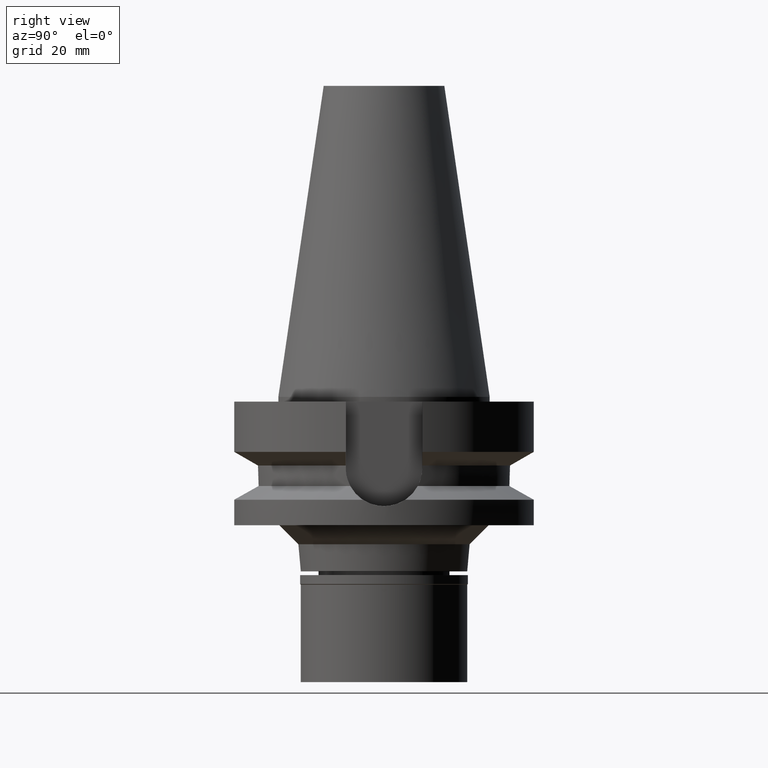
[diagram: clean part render]
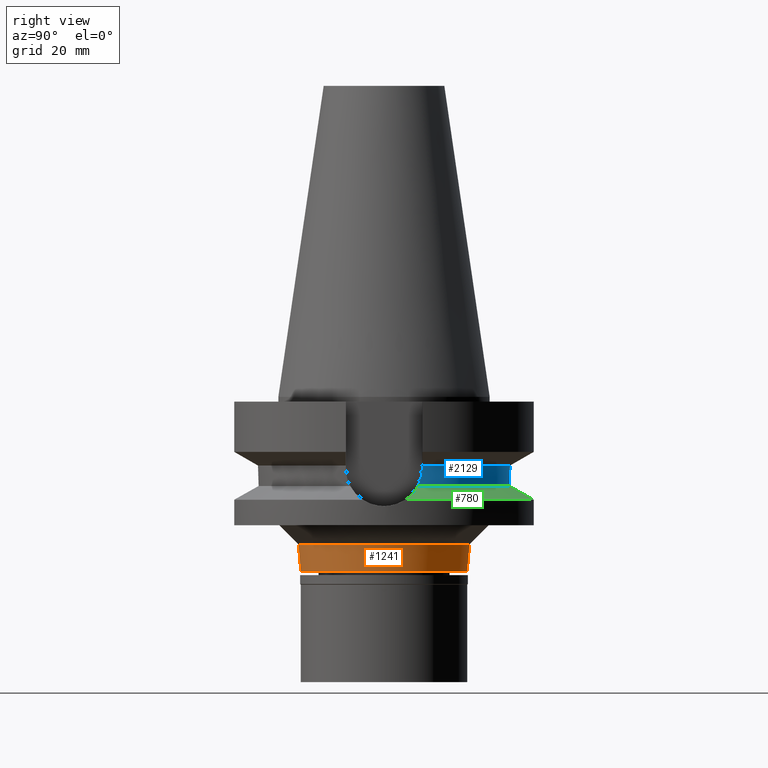
[diagram: same view with three faces highlighted in distinct colors, each labeled with its STEP entity id]
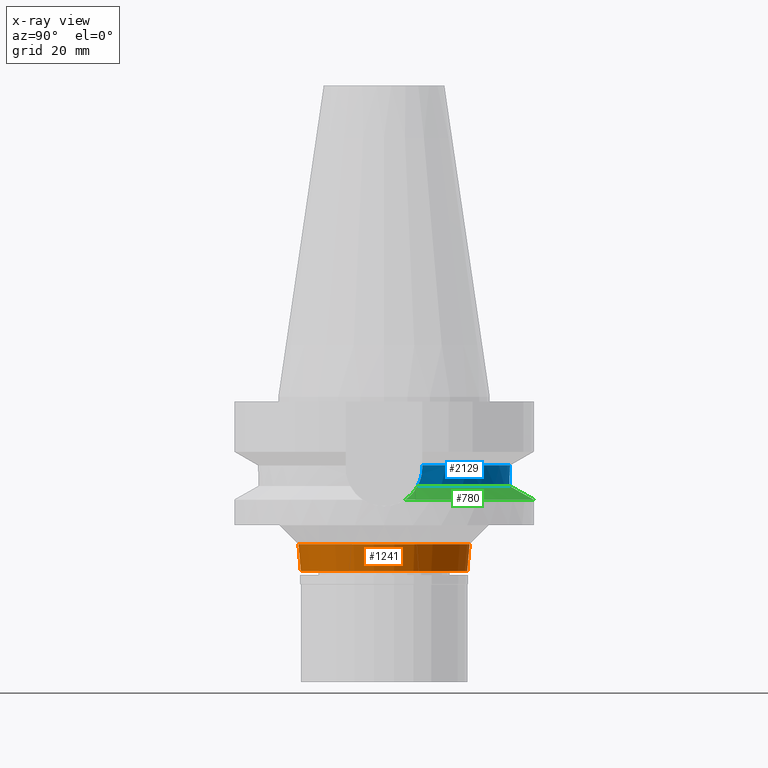
[diagram: x-ray of the same camera — body ghosted, the three highlighted faces saturated]
A machine part, right view with three faces highlighted in distinct colors.
The next image is the same camera in x-ray (body ghosted, the three faces saturated) — at least one of them is partly hidden behind the body in this view.
Their STEP definitions:

[orange] entity #1241 — the highlighted conical surface has half-angle 5.1 deg.
#208 = CARTESIAN_POINT ( 'NONE',  ( 0.0000000000000000000, 0.0000000000000000000, -33.85000000000000142 ) ) ;
#361 = CIRCLE ( 'NONE', #1116, 17.50000000000000000 ) ;
#375 = LINE ( 'NONE', #2158, #2154 ) ;
#459 = DIRECTION ( 'NONE',  ( 0.0000000000000000000, -0.08889429686614956638, -0.9960410654107956230 ) ) ;
#477 = VERTEX_POINT ( 'NONE', #1628 ) ;
#500 = CIRCLE ( 'NONE', #653, 18.00871144747999608 ) ;
#638 = EDGE_CURVE ( 'NONE', #2095, #2376, #361, .T. ) ;
#653 = AXIS2_PLACEMENT_3D ( 'NONE', #686, #2322, #1135 ) ;
#682 = CARTESIAN_POINT ( 'NONE',  ( 0.0000000000000000000, 17.50000000000000000, -36.70000000000000284 ) ) ;
#686 = CARTESIAN_POINT ( 'NONE',  ( 0.0000000000000000000, 0.0000000000000000000, -31.00000000000000000 ) ) ;
#701 = EDGE_CURVE ( 'NONE', #477, #2376, #1884, .T. ) ;
#762 = ORIENTED_EDGE ( 'NONE', *, *, #638, .T. ) ;
#784 = ORIENTED_EDGE ( 'NONE', *, *, #1198, .T. ) ;
#792 = DIRECTION ( 'NONE',  ( 0.0000000000000000000, -1.000000000000000000, 0.0000000000000000000 ) ) ;
#1116 = AXIS2_PLACEMENT_3D ( 'NONE', #2430, #2856, #792 ) ;
#1135 = DIRECTION ( 'NONE',  ( 0.0000000000000000000, -1.000000000000000000, 0.0000000000000000000 ) ) ;
#1198 = EDGE_CURVE ( 'NONE', #2704, #2095, #375, .T. ) ;
#1202 = EDGE_CURVE ( 'NONE', #2704, #477, #500, .T. ) ;
#1241 = ADVANCED_FACE ( 'NONE', ( #1400 ), #2824, .T. ) ;
#1400 = FACE_OUTER_BOUND ( 'NONE', #1982, .T. ) ;
#1446 = CARTESIAN_POINT ( 'NONE',  ( 0.0000000000000000000, 18.00871144747999608, -31.00000000000000000 ) ) ;
#1469 = DIRECTION ( 'NONE',  ( 0.0000000000000000000, 0.0000000000000000000, 1.000000000000000000 ) ) ;
#1628 = CARTESIAN_POINT ( 'NONE',  ( 0.0000000000000000000, 18.00871144747999608, -31.00000000000000000 ) ) ;
#1686 = DIRECTION ( 'NONE',  ( 0.0000000000000000000, 0.08889429686614956638, -0.9960410654107956230 ) ) ;
#1695 = AXIS2_PLACEMENT_3D ( 'NONE', #208, #1469, #2179 ) ;
#1884 = LINE ( 'NONE', #1446, #2007 ) ;
#1982 = EDGE_LOOP ( 'NONE', ( #2739, #784, #762, #3005 ) ) ;
#1985 = CARTESIAN_POINT ( 'NONE',  ( 0.0000000000000000000, -17.50000000000000000, -36.70000000000000284 ) ) ;
#2007 = VECTOR ( 'NONE', #459, 1000.000000000000114 ) ;
#2095 = VERTEX_POINT ( 'NONE', #1985 ) ;
#2154 = VECTOR ( 'NONE', #1686, 1000.000000000000114 ) ;
#2158 = CARTESIAN_POINT ( 'NONE',  ( 0.0000000000000000000, -18.00871144747999608, -31.00000000000000000 ) ) ;
#2179 = DIRECTION ( 'NONE',  ( 0.0000000000000000000, 1.000000000000000000, 0.0000000000000000000 ) ) ;
#2322 = DIRECTION ( 'NONE',  ( 0.0000000000000000000, 0.0000000000000000000, 1.000000000000000000 ) ) ;
#2376 = VERTEX_POINT ( 'NONE', #682 ) ;
#2430 = CARTESIAN_POINT ( 'NONE',  ( 0.0000000000000000000, 0.0000000000000000000, -36.70000000000000284 ) ) ;
#2700 = CARTESIAN_POINT ( 'NONE',  ( 0.0000000000000000000, -18.00871144747999608, -31.00000000000000000 ) ) ;
#2704 = VERTEX_POINT ( 'NONE', #2700 ) ;
#2739 = ORIENTED_EDGE ( 'NONE', *, *, #1202, .F. ) ;
#2824 = CONICAL_SURFACE ( 'NONE', #1695, 17.75435572374000159, 0.08901179185169383334 ) ;
#2856 = DIRECTION ( 'NONE',  ( 0.0000000000000000000, 0.0000000000000000000, 1.000000000000000000 ) ) ;
#3005 = ORIENTED_EDGE ( 'NONE', *, *, #701, .F. ) ;

[blue] entity #2129 — the highlighted cylindrical surface (partial cylindrical patch) has radius 26.5 mm, axis along (0, 0, -1).
#55 = LINE ( 'NONE', #1647, #302 ) ;
#116 = EDGE_CURVE ( 'NONE', #2320, #2419, #1307, .T. ) ;
#159 = AXIS2_PLACEMENT_3D ( 'NONE', #1272, #1587, #1538 ) ;
#250 = AXIS2_PLACEMENT_3D ( 'NONE', #1617, #2564, #2864 ) ;
#289 = CARTESIAN_POINT ( 'NONE',  ( -25.31202244740001461, 7.845715351188225384, -16.75285925644253382 ) ) ;
#296 = EDGE_CURVE ( 'NONE', #1281, #2406, #2774, .T. ) ;
#302 = VECTOR ( 'NONE', #527, 1000.000000000000114 ) ;
#445 = CARTESIAN_POINT ( 'NONE',  ( 25.37570668987012112, 7.637796999689727251, -17.49792859799481448 ) ) ;
#448 = VERTEX_POINT ( 'NONE', #1871 ) ;
#462 = CARTESIAN_POINT ( 'NONE',  ( 25.53175183775000079, 7.097862220092999941, -18.74774300138999905 ) ) ;
#470 = EDGE_CURVE ( 'NONE', #1281, #2260, #2762, .T. ) ;
#488 = CARTESIAN_POINT ( 'NONE',  ( 25.24772414797999787, 8.049995363206999599, -14.45229242979000084 ) ) ;
#527 = DIRECTION ( 'NONE',  ( 2.970413124855976911E-06, -9.316300007267926456E-06, 0.9999999999521915761 ) ) ;
#651 = CARTESIAN_POINT ( 'NONE',  ( 25.33290093529253895, 7.778067760096087468, -17.02527487563960307 ) ) ;
#658 = VECTOR ( 'NONE', #1616, 1000.000000000000114 ) ;
#669 = B_SPLINE_CURVE_WITH_KNOTS ( 'NONE', 3,
 ( #2378, #1036, #2241, #2940, #841, #1781, #1031, #289, #2952, #2486, #2658, #2268, #1255, #1024 ),
 .UNSPECIFIED., .F., .F.,
 ( 4, 2, 2, 1, 1, 2, 2, 4 ),
 ( 0.0000000000000000000, 0.2500000000000162648, 0.3750000000000237033, 0.4375000000000274225, 0.4687500000000292544, 0.4843750000000290878, 0.5000000000000288658, 1.000000000000000000 ),
 .UNSPECIFIED. ) ;
#841 = CARTESIAN_POINT ( 'NONE',  ( -25.28048191953834234, 7.947027004681899598, -16.24409354915845327 ) ) ;
#844 = FACE_OUTER_BOUND ( 'NONE', #1235, .T. ) ;
#891 = CARTESIAN_POINT ( 'NONE',  ( -25.24772217529000073, 8.050001550280999396, -14.45224515308999891 ) ) ;
#919 = CARTESIAN_POINT ( 'NONE',  ( -25.53175183775000079, 7.097862220092999941, -18.74774300138999905 ) ) ;
#1024 = CARTESIAN_POINT ( 'NONE',  ( -25.53175183775000079, 7.097862220092999941, -18.74774300138999905 ) ) ;
#1031 = CARTESIAN_POINT ( 'NONE',  ( -25.30212642397509626, 7.877652634765773598, -16.61049091562633961 ) ) ;
#1036 = CARTESIAN_POINT ( 'NONE',  ( -25.24772266958000699, 8.050000000000018474, -15.26995863568740397 ) ) ;
#1148 = CARTESIAN_POINT ( 'NONE',  ( 25.32841847211643937, 7.792621106460854818, -16.96938725878849041 ) ) ;
#1205 = ORIENTED_EDGE ( 'NONE', *, *, #116, .T. ) ;
#1235 = EDGE_LOOP ( 'NONE', ( #1205, #2746, #1419, #2278, #2190, #1773 ) ) ;
#1255 = CARTESIAN_POINT ( 'NONE',  ( -25.43785506100059379, 7.435618734365219140, -18.11648669958635693 ) ) ;
#1272 = CARTESIAN_POINT ( 'NONE',  ( 0.0000000000000000000, 2.098248593318999714E-14, 71.33499999999999375 ) ) ;
#1281 = VERTEX_POINT ( 'NONE', #462 ) ;
#1290 = EDGE_CURVE ( 'NONE', #448, #2406, #669, .T. ) ;
#1307 = CIRCLE ( 'NONE', #250, 26.50000000000000711 ) ;
#1313 = CYLINDRICAL_SURFACE ( 'NONE', #159, 26.50000000000000000 ) ;
#1360 = CARTESIAN_POINT ( 'NONE',  ( 25.32416715502053250, 7.806414197728631876, -16.91540975489061438 ) ) ;
#1389 = CARTESIAN_POINT ( 'NONE',  ( 25.39162493938946952, 7.584889300339769491, -17.65175237885825510 ) ) ;
#1419 = ORIENTED_EDGE ( 'NONE', *, *, #470, .F. ) ;
#1538 = DIRECTION ( 'NONE',  ( 0.0000000000000000000, -1.000000000000000000, 0.0000000000000000000 ) ) ;
#1587 = DIRECTION ( 'NONE',  ( 0.0000000000000000000, 0.0000000000000000000, -1.000000000000000000 ) ) ;
#1616 = DIRECTION ( 'NONE',  ( -9.930438083725565891E-07, -3.114547832065863876E-06, -0.9999999999946567186 ) ) ;
#1617 = CARTESIAN_POINT ( 'NONE',  ( 0.0000000000000000000, 1.065333950388000029E-14, -14.45225699861000024 ) ) ;
#1647 = CARTESIAN_POINT ( 'NONE',  ( 25.24772266958000344, 8.050000000000000711, -14.94999999999999929 ) ) ;
#1773 = ORIENTED_EDGE ( 'NONE', *, *, #1827, .F. ) ;
#1774 = DIRECTION ( 'NONE',  ( 0.9634623335000935818, 0.2678438573619981722, 0.0000000000000000000 ) ) ;
#1781 = CARTESIAN_POINT ( 'NONE',  ( -25.29452159809190093, 7.902075829211898217, -16.48836005901232937 ) ) ;
#1827 = EDGE_CURVE ( 'NONE', #2320, #448, #1853, .T. ) ;
#1853 = LINE ( 'NONE', #891, #658 ) ;
#1871 = CARTESIAN_POINT ( 'NONE',  ( -25.24772266958000344, 8.050000000000000711, -14.94999999999999929 ) ) ;
#1889 = CARTESIAN_POINT ( 'NONE',  ( 25.48481052201388408, 7.266715036218282187, -18.43216239893522257 ) ) ;
#2032 = CARTESIAN_POINT ( 'NONE',  ( 0.0000000000000000000, 0.0000000000000000000, -18.74774300138999905 ) ) ;
#2070 = EDGE_CURVE ( 'NONE', #2260, #2419, #55, .T. ) ;
#2074 = CARTESIAN_POINT ( 'NONE',  ( 25.53175183775000079, 7.097862220092999941, -18.74774300138999905 ) ) ;
#2102 = CARTESIAN_POINT ( 'NONE',  ( 25.34385564283465797, 7.742426194080676893, -17.15634504640316749 ) ) ;
#2129 = ADVANCED_FACE ( 'NONE', ( #844 ), #1313, .T. ) ;
#2190 = ORIENTED_EDGE ( 'NONE', *, *, #1290, .F. ) ;
#2241 = CARTESIAN_POINT ( 'NONE',  ( -25.25396252671492547, 8.030902051885153270, -15.59367622151629718 ) ) ;
#2260 = VERTEX_POINT ( 'NONE', #2460 ) ;
#2268 = CARTESIAN_POINT ( 'NONE',  ( -25.36813810015027926, 7.663837995223238941, -17.48799049447513454 ) ) ;
#2278 = ORIENTED_EDGE ( 'NONE', *, *, #296, .T. ) ;
#2320 = VERTEX_POINT ( 'NONE', #2823 ) ;
#2334 = CARTESIAN_POINT ( 'NONE',  ( 25.24772266958000344, 8.050000000000000711, -15.58988314849633561 ) ) ;
#2378 = CARTESIAN_POINT ( 'NONE',  ( -25.24772266958000344, 8.050000000000000711, -14.94999999999999929 ) ) ;
#2406 = VERTEX_POINT ( 'NONE', #919 ) ;
#2419 = VERTEX_POINT ( 'NONE', #488 ) ;
#2460 = CARTESIAN_POINT ( 'NONE',  ( 25.24772266958000344, 8.050000000000000711, -14.94999999999999929 ) ) ;
#2486 = CARTESIAN_POINT ( 'NONE',  ( -25.31950540107353120, 7.821502334283406022, -16.85447843441894022 ) ) ;
#2529 = CARTESIAN_POINT ( 'NONE',  ( 25.32547736588454868, 7.802164859283096554, -16.93219376408675814 ) ) ;
#2536 = AXIS2_PLACEMENT_3D ( 'NONE', #2032, #2710, #1774 ) ;
#2564 = DIRECTION ( 'NONE',  ( 0.0000000000000000000, 0.0000000000000000000, -1.000000000000000000 ) ) ;
#2590 = CARTESIAN_POINT ( 'NONE',  ( 25.27268413421364812, 7.973316252974504970, -16.24513481739792908 ) ) ;
#2658 = CARTESIAN_POINT ( 'NONE',  ( -25.32117791941933405, 7.816083715568992396, -16.87657725263354180 ) ) ;
#2710 = DIRECTION ( 'NONE',  ( 0.0000000000000000000, 0.0000000000000000000, 1.000000000000000000 ) ) ;
#2746 = ORIENTED_EDGE ( 'NONE', *, *, #2070, .F. ) ;
#2762 = B_SPLINE_CURVE_WITH_KNOTS ( 'NONE', 3,
 ( #2074, #1889, #2801, #1389, #445, #3041, #2102, #651, #1148, #2529, #1360, #2590, #2334, #2764 ),
 .UNSPECIFIED., .F., .F.,
 ( 4, 2, 2, 1, 1, 2, 2, 4 ),
 ( 0.0000000000000000000, 0.2500000000000008882, 0.3750000000000025535, 0.4375000000000021094, 0.4687500000000018874, 0.4843750000000029421, 0.5000000000000039968, 1.000000000000000000 ),
 .UNSPECIFIED. ) ;
#2764 = CARTESIAN_POINT ( 'NONE',  ( 25.24772266958000344, 8.050000000000000711, -14.94999999999999929 ) ) ;
#2774 = CIRCLE ( 'NONE', #2536, 26.49999999999998224 ) ;
#2801 = CARTESIAN_POINT ( 'NONE',  ( 25.44391113295673534, 7.408299074736797607, -18.11696246892093853 ) ) ;
#2823 = CARTESIAN_POINT ( 'NONE',  ( -25.24772217529000073, 8.050001550280999396, -14.45224515308999891 ) ) ;
#2864 = DIRECTION ( 'NONE',  ( -0.9527442516822307583, 0.3037735849057093818, 0.0000000000000000000 ) ) ;
#2940 = CARTESIAN_POINT ( 'NONE',  ( -25.27268209811968092, 7.971799596722143555, -16.08124396174321902 ) ) ;
#2952 = CARTESIAN_POINT ( 'NONE',  ( -25.31648297027380679, 7.831286608423163820, -16.81383661545202557 ) ) ;
#3041 = CARTESIAN_POINT ( 'NONE',  ( 25.35409503809571774, 7.708922223049618161, -17.26977670179890723 ) ) ;

[green] entity #780 — the highlighted conical surface has half-angle 60 deg.
#34 = DIRECTION ( 'NONE',  ( 0.0000000000000000000, 0.0000000000000000000, -1.000000000000000000 ) ) ;
#53 = B_SPLINE_CURVE_WITH_KNOTS ( 'NONE', 3,
 ( #2030, #1556, #532, #775, #107, #2868, #588, #977, #1934, #1539, #2483, #519, #2264, #2853 ),
 .UNSPECIFIED., .F., .F.,
 ( 4, 2, 2, 1, 1, 2, 2, 4 ),
 ( 0.0000000000000000000, 0.2499999999999855671, 0.3749999999999786837, 0.4374999999999752420, 0.4687499999999740208, 0.4843749999999744649, 0.4999999999999749090, 1.000000000000000000 ),
 .UNSPECIFIED. ) ;
#90 = DIRECTION ( 'NONE',  ( 0.0000000000000000000, 1.000000000000000000, 0.0000000000000000000 ) ) ;
#107 = CARTESIAN_POINT ( 'NONE',  ( -27.86935078466503768, 6.314241967961879531, -19.94614511715922589 ) ) ;
#134 = CARTESIAN_POINT ( 'NONE',  ( 28.88662173957530399, 5.863387539855740016, -20.46575949448729759 ) ) ;
#209 = ORIENTED_EDGE ( 'NONE', *, *, #609, .F. ) ;
#254 = ORIENTED_EDGE ( 'NONE', *, *, #681, .F. ) ;
#296 = EDGE_CURVE ( 'NONE', #1281, #2406, #2774, .T. ) ;
#368 = ORIENTED_EDGE ( 'NONE', *, *, #1157, .F. ) ;
#392 = CARTESIAN_POINT ( 'NONE',  ( 27.92404568082185179, 6.323456278402608710, -19.97420482294344168 ) ) ;
#462 = CARTESIAN_POINT ( 'NONE',  ( 25.53175183775000079, 7.097862220092999941, -18.74774300138999905 ) ) ;
#475 = EDGE_CURVE ( 'NONE', #2666, #1596, #1311, .T. ) ;
#489 = CARTESIAN_POINT ( 'NONE',  ( 0.0000000000000000000, 0.0000000000000000000, -20.19111867435999841 ) ) ;
#519 = CARTESIAN_POINT ( 'NONE',  ( -29.76034277661639393, 5.445783774803773625, -20.91193642771688488 ) ) ;
#532 = CARTESIAN_POINT ( 'NONE',  ( -26.77170282121521083, 6.727659071351483000, -19.38438364392088786 ) ) ;
#552 = EDGE_LOOP ( 'NONE', ( #368, #1293, #254, #209, #968 ) ) ;
#588 = CARTESIAN_POINT ( 'NONE',  ( -28.43957147381200556, 6.071011224801489803, -20.23747356311369217 ) ) ;
#609 = EDGE_CURVE ( 'NONE', #1596, #1317, #2827, .T. ) ;
#627 = CARTESIAN_POINT ( 'NONE',  ( 29.24539825080089983, 5.686404886082226717, -20.64895039922000208 ) ) ;
#681 = EDGE_CURVE ( 'NONE', #1317, #1281, #749, .T. ) ;
#703 = DIRECTION ( 'NONE',  ( 0.0000000000000000000, 0.0000000000000000000, -1.000000000000000000 ) ) ;
#749 = B_SPLINE_CURVE_WITH_KNOTS ( 'NONE', 3,
 ( #1779, #1073, #2292, #871, #1814, #2744, #627, #2521, #1325, #2272, #134, #392, #1826, #2063 ),
 .UNSPECIFIED., .F., .F.,
 ( 4, 2, 2, 1, 1, 2, 2, 4 ),
 ( 0.0000000000000000000, 0.2499999999999998335, 0.3749999999999998335, 0.4374999999999998890, 0.4687499999999999445, 0.4843750000000002220, 0.5000000000000005551, 1.000000000000000000 ),
 .UNSPECIFIED. ) ;
#775 = CARTESIAN_POINT ( 'NONE',  ( -27.60314858341885369, 6.419759492150147295, -19.81002590357304527 ) ) ;
#780 = ADVANCED_FACE ( 'NONE', ( #1676 ), #963, .T. ) ;
#871 = CARTESIAN_POINT ( 'NONE',  ( 29.92152120124286085, 5.319443134748142121, -20.99394787880276425 ) ) ;
#913 = AXIS2_PLACEMENT_3D ( 'NONE', #2842, #34, #90 ) ;
#919 = CARTESIAN_POINT ( 'NONE',  ( -25.53175183775000079, 7.097862220092999941, -18.74774300138999905 ) ) ;
#963 = CONICAL_SURFACE ( 'NONE', #1065, 29.00000000000000000, 1.047197551196400456 ) ;
#968 = ORIENTED_EDGE ( 'NONE', *, *, #475, .F. ) ;
#977 = CARTESIAN_POINT ( 'NONE',  ( -28.65094770215968722, 5.974527729957225475, -20.34541304254299732 ) ) ;
#1065 = AXIS2_PLACEMENT_3D ( 'NONE', #489, #1201, #2141 ) ;
#1073 = CARTESIAN_POINT ( 'NONE',  ( 30.85657950574569597, 4.730145626779496126, -21.47035264402908439 ) ) ;
#1110 = CARTESIAN_POINT ( 'NONE',  ( 31.17899877608999759, 4.485536235554000051, -21.63449434733000132 ) ) ;
#1157 = EDGE_CURVE ( 'NONE', #2406, #2666, #53, .T. ) ;
#1201 = DIRECTION ( 'NONE',  ( 0.0000000000000000000, 0.0000000000000000000, -1.000000000000000000 ) ) ;
#1281 = VERTEX_POINT ( 'NONE', #462 ) ;
#1293 = ORIENTED_EDGE ( 'NONE', *, *, #296, .F. ) ;
#1311 = CIRCLE ( 'NONE', #1406, 31.50000000000001421 ) ;
#1317 = VERTEX_POINT ( 'NONE', #1110 ) ;
#1325 = CARTESIAN_POINT ( 'NONE',  ( 28.96968018557576485, 5.823195326908508385, -20.50817272116828249 ) ) ;
#1406 = AXIS2_PLACEMENT_3D ( 'NONE', #2815, #703, #1645 ) ;
#1539 = CARTESIAN_POINT ( 'NONE',  ( -28.79902308858564552, 5.905149558472635007, -20.42102629997221541 ) ) ;
#1556 = CARTESIAN_POINT ( 'NONE',  ( -26.17362010179265752, 6.921423633164285327, -19.07750117087502417 ) ) ;
#1596 = VERTEX_POINT ( 'NONE', #2045 ) ;
#1645 = DIRECTION ( 'NONE',  ( -0.9898094849552905306, 0.1423979757318985240, 0.0000000000000000000 ) ) ;
#1676 = FACE_OUTER_BOUND ( 'NONE', #552, .T. ) ;
#1774 = DIRECTION ( 'NONE',  ( 0.9634623335000935818, 0.2678438573619981722, 0.0000000000000000000 ) ) ;
#1779 = CARTESIAN_POINT ( 'NONE',  ( 31.17899877608999759, 4.485536235554000051, -21.63449434733000132 ) ) ;
#1814 = CARTESIAN_POINT ( 'NONE',  ( 29.71999590087004606, 5.434077834403014506, -20.89116098979985026 ) ) ;
#1826 = CARTESIAN_POINT ( 'NONE',  ( 26.81547870403921152, 6.744987702098485194, -19.40725437663970254 ) ) ;
#1934 = CARTESIAN_POINT ( 'NONE',  ( -28.73999817875566620, 5.932932132617555254, -20.39088562576637997 ) ) ;
#2030 = CARTESIAN_POINT ( 'NONE',  ( -25.53175183775000079, 7.097862220092999941, -18.74774300138999905 ) ) ;
#2032 = CARTESIAN_POINT ( 'NONE',  ( 0.0000000000000000000, 0.0000000000000000000, -18.74774300138999905 ) ) ;
#2045 = CARTESIAN_POINT ( 'NONE',  ( 0.0000000000000000000, 31.50000000000000000, -21.63449434733000132 ) ) ;
#2063 = CARTESIAN_POINT ( 'NONE',  ( 25.53175183775000079, 7.097862220092999941, -18.74774300138999905 ) ) ;
#2141 = DIRECTION ( 'NONE',  ( 0.0000000000000000000, -1.000000000000000000, 0.0000000000000000000 ) ) ;
#2264 = CARTESIAN_POINT ( 'NONE',  ( -30.53416407312488090, 4.974752106442124067, -21.30621289448823674 ) ) ;
#2272 = CARTESIAN_POINT ( 'NONE',  ( 28.91375545651745682, 5.850319755256450982, -20.47961540931414959 ) ) ;
#2292 = CARTESIAN_POINT ( 'NONE',  ( 30.50190770324087453, 4.970159521104144495, -21.28980593053070436 ) ) ;
#2406 = VERTEX_POINT ( 'NONE', #919 ) ;
#2483 = CARTESIAN_POINT ( 'NONE',  ( -28.82932214000046400, 5.890774474569539620, -20.43649847270734909 ) ) ;
#2521 = CARTESIAN_POINT ( 'NONE',  ( 29.05318931980192687, 5.782394212794814692, -20.55081441876465576 ) ) ;
#2536 = AXIS2_PLACEMENT_3D ( 'NONE', #2032, #2710, #1774 ) ;
#2666 = VERTEX_POINT ( 'NONE', #2936 ) ;
#2710 = DIRECTION ( 'NONE',  ( 0.0000000000000000000, 0.0000000000000000000, 1.000000000000000000 ) ) ;
#2744 = CARTESIAN_POINT ( 'NONE',  ( 29.40561325075064047, 5.602829467173738642, -20.73072883951815726 ) ) ;
#2774 = CIRCLE ( 'NONE', #2536, 26.49999999999998224 ) ;
#2815 = CARTESIAN_POINT ( 'NONE',  ( 0.0000000000000000000, 0.0000000000000000000, -21.63449434733000132 ) ) ;
#2827 = CIRCLE ( 'NONE', #913, 31.50000000000000000 ) ;
#2842 = CARTESIAN_POINT ( 'NONE',  ( 0.0000000000000000000, 0.0000000000000000000, -21.63449434733000132 ) ) ;
#2853 = CARTESIAN_POINT ( 'NONE',  ( -31.17899877608999759, 4.485536235554000051, -21.63449434733000132 ) ) ;
#2868 = CARTESIAN_POINT ( 'NONE',  ( -28.25223450730177177, 6.152642640155924880, -20.14178610479634557 ) ) ;
#2936 = CARTESIAN_POINT ( 'NONE',  ( -31.17899877608999759, 4.485536235554000051, -21.63449434733000132 ) ) ;